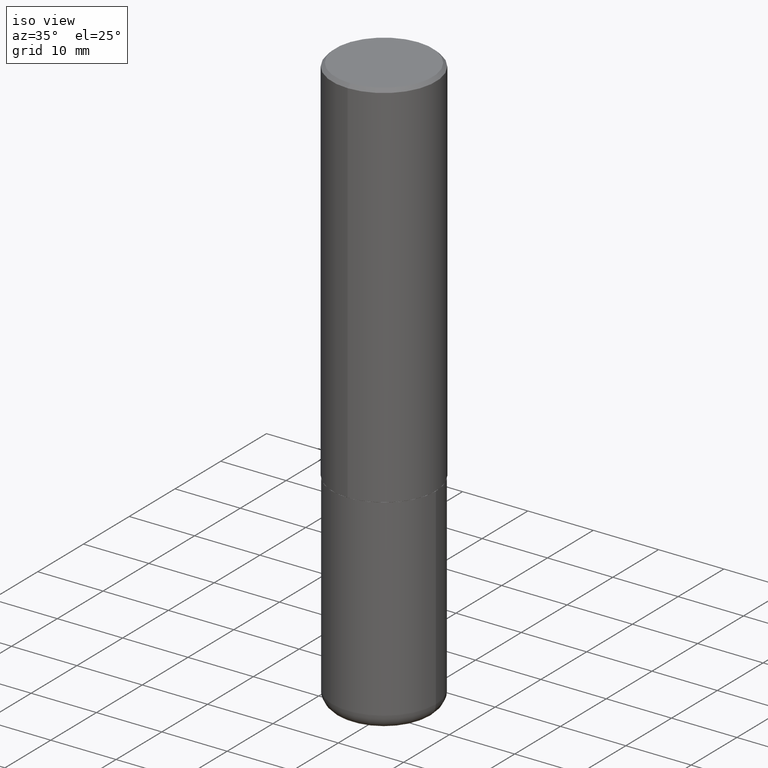
[diagram: clean part render]
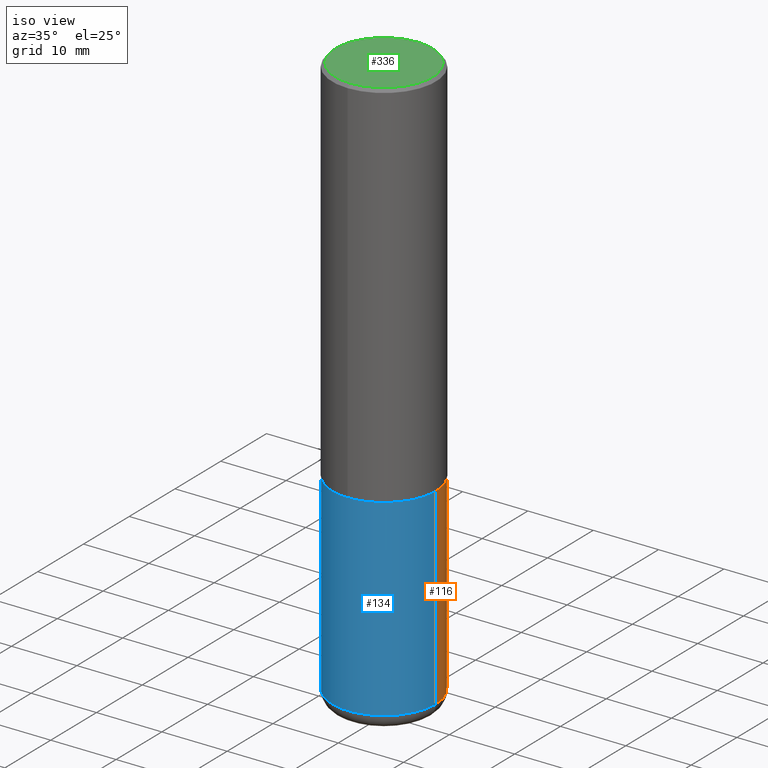
[diagram: same view with three faces highlighted in distinct colors, each labeled with its STEP entity id]
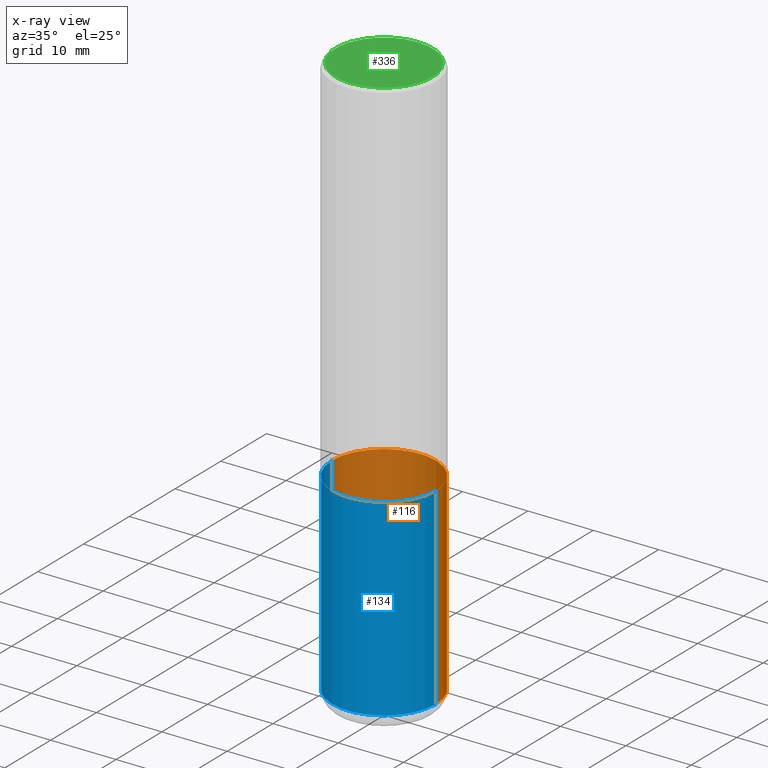
[diagram: x-ray of the same camera — body ghosted, the three highlighted faces saturated]
A machine part, iso view with three faces highlighted in distinct colors.
The next image is the same camera in x-ray (body ghosted, the three faces saturated) — at least one of them is partly hidden behind the body in this view.
Their STEP definitions:

[orange] entity #116 — the highlighted cylindrical surface (partial cylindrical patch) has radius 7.9375 mm, axis along (-0, 0, 1).
#10 = VECTOR ( 'NONE', #81, 39.37007874015748143 ) ;
#17 = CYLINDRICAL_SURFACE ( 'NONE', #105, 0.3125000000000000000 ) ;
#25 = CARTESIAN_POINT ( 'NONE',  ( -0.3125000000000000000, -7.660446139675788393E-15, -2.249999999999999556 ) ) ;
#34 = ORIENTED_EDGE ( 'NONE', *, *, #249, .T. ) ;
#41 = LINE ( 'NONE', #274, #10 ) ;
#42 = CARTESIAN_POINT ( 'NONE',  ( 0.000000000000000000, 0.000000000000000000, 0.000000000000000000 ) ) ;
#47 = DIRECTION ( 'NONE',  ( -2.445468806185136877E-29, 3.491481338843145188E-15, 1.000000000000000000 ) ) ;
#48 = AXIS2_PLACEMENT_3D ( 'NONE', #79, #343, #210 ) ;
#53 = DIRECTION ( 'NONE',  ( -2.445468806185136597E-29, 3.491481338843145583E-15, 1.000000000000000000 ) ) ;
#76 = DIRECTION ( 'NONE',  ( 1.000000000000000000, -6.982962677686266711E-15, 4.876176775795936353E-29 ) ) ;
#79 = CARTESIAN_POINT ( 'NONE',  ( 5.502304813916556222E-29, -7.855833012397075293E-15, -2.249999999999999556 ) ) ;
#81 = DIRECTION ( 'NONE',  ( -2.445468806185136877E-29, 3.491481338843145188E-15, 1.000000000000000000 ) ) ;
#86 = DIRECTION ( 'NONE',  ( 1.000000000000000000, -6.982962677686269077E-15, 0.000000000000000000 ) ) ;
#105 = AXIS2_PLACEMENT_3D ( 'NONE', #42, #372, #76 ) ;
#109 = EDGE_CURVE ( 'NONE', #328, #131, #41, .T. ) ;
#116 = ADVANCED_FACE ( 'NONE', ( #173 ), #17, .T. ) ;
#120 = VERTEX_POINT ( 'NONE', #411 ) ;
#131 = VERTEX_POINT ( 'NONE', #139 ) ;
#139 = CARTESIAN_POINT ( 'NONE',  ( 0.3125000000000000000, -1.003800884917403364E-14, -2.249999999999999556 ) ) ;
#173 = FACE_OUTER_BOUND ( 'NONE', #387, .T. ) ;
#187 = CIRCLE ( 'NONE', #268, 0.3125000000000000000 ) ;
#194 = ORIENTED_EDGE ( 'NONE', *, *, #109, .F. ) ;
#202 = CIRCLE ( 'NONE', #48, 0.3125000000000000000 ) ;
#210 = DIRECTION ( 'NONE',  ( 1.000000000000000000, -6.982962677686265133E-15, 0.000000000000000000 ) ) ;
#227 = ORIENTED_EDGE ( 'NONE', *, *, #300, .T. ) ;
#236 = EDGE_CURVE ( 'NONE', #131, #376, #202, .T. ) ;
#249 = EDGE_CURVE ( 'NONE', #120, #376, #276, .T. ) ;
#268 = AXIS2_PLACEMENT_3D ( 'NONE', #317, #53, #86 ) ;
#274 = CARTESIAN_POINT ( 'NONE',  ( 0.3125000000000000000, -2.182175836776958347E-15, 1.523805242436230075E-29 ) ) ;
#276 = LINE ( 'NONE', #410, #407 ) ;
#300 = EDGE_CURVE ( 'NONE', #328, #120, #187, .T. ) ;
#317 = CARTESIAN_POINT ( 'NONE',  ( 8.339048629091315302E-29, -1.190595136545512608E-14, -3.410000000000000142 ) ) ;
#328 = VERTEX_POINT ( 'NONE', #380 ) ;
#343 = DIRECTION ( 'NONE',  ( -2.445468806185136597E-29, 3.491481338843145583E-15, 1.000000000000000000 ) ) ;
#356 = ORIENTED_EDGE ( 'NONE', *, *, #236, .F. ) ;
#372 = DIRECTION ( 'NONE',  ( -2.445468806185136597E-29, 3.491481338843145583E-15, 1.000000000000000000 ) ) ;
#376 = VERTEX_POINT ( 'NONE', #25 ) ;
#380 = CARTESIAN_POINT ( 'NONE',  ( 0.3124999999999998890, -1.408812720223208442E-14, -3.410000000000000142 ) ) ;
#387 = EDGE_LOOP ( 'NONE', ( #227, #34, #356, #194 ) ) ;
#407 = VECTOR ( 'NONE', #47, 39.37007874015748143 ) ;
#410 = CARTESIAN_POINT ( 'NONE',  ( -0.3125000000000000000, 2.220446049250313081E-15, -1.537167215704658232E-29 ) ) ;
#411 = CARTESIAN_POINT ( 'NONE',  ( -0.3124999999999998890, -9.685505316204812997E-15, -3.410000000000000142 ) ) ;

[blue] entity #134 — the highlighted cylindrical surface (partial cylindrical patch) has radius 7.9375 mm, axis along (-0, 0, 1).
#8 = DIRECTION ( 'NONE',  ( 1.000000000000000000, -6.982962677686265133E-15, 0.000000000000000000 ) ) ;
#10 = VECTOR ( 'NONE', #81, 39.37007874015748143 ) ;
#25 = CARTESIAN_POINT ( 'NONE',  ( -0.3125000000000000000, -7.660446139675788393E-15, -2.249999999999999556 ) ) ;
#41 = LINE ( 'NONE', #274, #10 ) ;
#45 = AXIS2_PLACEMENT_3D ( 'NONE', #390, #235, #8 ) ;
#47 = DIRECTION ( 'NONE',  ( -2.445468806185136877E-29, 3.491481338843145188E-15, 1.000000000000000000 ) ) ;
#49 = ORIENTED_EDGE ( 'NONE', *, *, #360, .T. ) ;
#50 = CARTESIAN_POINT ( 'NONE',  ( 8.339048629091315302E-29, -1.190595136545512608E-14, -3.410000000000000142 ) ) ;
#57 = DIRECTION ( 'NONE',  ( -2.445468806185136597E-29, 3.491481338843145583E-15, 1.000000000000000000 ) ) ;
#80 = EDGE_CURVE ( 'NONE', #376, #131, #312, .T. ) ;
#81 = DIRECTION ( 'NONE',  ( -2.445468806185136877E-29, 3.491481338843145188E-15, 1.000000000000000000 ) ) ;
#107 = DIRECTION ( 'NONE',  ( -2.445468806185136597E-29, 3.491481338843145583E-15, 1.000000000000000000 ) ) ;
#109 = EDGE_CURVE ( 'NONE', #328, #131, #41, .T. ) ;
#113 = CYLINDRICAL_SURFACE ( 'NONE', #262, 0.3125000000000000000 ) ;
#118 = DIRECTION ( 'NONE',  ( 1.000000000000000000, -6.982962677686269077E-15, 0.000000000000000000 ) ) ;
#120 = VERTEX_POINT ( 'NONE', #411 ) ;
#129 = CIRCLE ( 'NONE', #286, 0.3125000000000000000 ) ;
#131 = VERTEX_POINT ( 'NONE', #139 ) ;
#134 = ADVANCED_FACE ( 'NONE', ( #146 ), #113, .T. ) ;
#139 = CARTESIAN_POINT ( 'NONE',  ( 0.3125000000000000000, -1.003800884917403364E-14, -2.249999999999999556 ) ) ;
#146 = FACE_OUTER_BOUND ( 'NONE', #374, .T. ) ;
#177 = CARTESIAN_POINT ( 'NONE',  ( 0.000000000000000000, 0.000000000000000000, 0.000000000000000000 ) ) ;
#235 = DIRECTION ( 'NONE',  ( -2.445468806185136597E-29, 3.491481338843145583E-15, 1.000000000000000000 ) ) ;
#242 = ORIENTED_EDGE ( 'NONE', *, *, #80, .F. ) ;
#244 = DIRECTION ( 'NONE',  ( 1.000000000000000000, -6.982962677686266711E-15, 4.876176775795936353E-29 ) ) ;
#249 = EDGE_CURVE ( 'NONE', #120, #376, #276, .T. ) ;
#262 = AXIS2_PLACEMENT_3D ( 'NONE', #177, #107, #244 ) ;
#274 = CARTESIAN_POINT ( 'NONE',  ( 0.3125000000000000000, -2.182175836776958347E-15, 1.523805242436230075E-29 ) ) ;
#276 = LINE ( 'NONE', #410, #407 ) ;
#277 = ORIENTED_EDGE ( 'NONE', *, *, #249, .F. ) ;
#286 = AXIS2_PLACEMENT_3D ( 'NONE', #50, #57, #118 ) ;
#312 = CIRCLE ( 'NONE', #45, 0.3125000000000000000 ) ;
#328 = VERTEX_POINT ( 'NONE', #380 ) ;
#360 = EDGE_CURVE ( 'NONE', #120, #328, #129, .T. ) ;
#374 = EDGE_LOOP ( 'NONE', ( #277, #49, #417, #242 ) ) ;
#376 = VERTEX_POINT ( 'NONE', #25 ) ;
#380 = CARTESIAN_POINT ( 'NONE',  ( 0.3124999999999998890, -1.408812720223208442E-14, -3.410000000000000142 ) ) ;
#390 = CARTESIAN_POINT ( 'NONE',  ( 5.502304813916556222E-29, -7.855833012397075293E-15, -2.249999999999999556 ) ) ;
#407 = VECTOR ( 'NONE', #47, 39.37007874015748143 ) ;
#410 = CARTESIAN_POINT ( 'NONE',  ( -0.3125000000000000000, 2.220446049250313081E-15, -1.537167215704658232E-29 ) ) ;
#411 = CARTESIAN_POINT ( 'NONE',  ( -0.3124999999999998890, -9.685505316204812997E-15, -3.410000000000000142 ) ) ;
#417 = ORIENTED_EDGE ( 'NONE', *, *, #109, .T. ) ;

[green] entity #336 — the highlighted planar face has unit normal (0, -0, -1).
#4 = VERTEX_POINT ( 'NONE', #395 ) ;
#20 = DIRECTION ( 'NONE',  ( -6.982962677686265133E-15, -1.000000000000000000, 3.490443558904832811E-15 ) ) ;
#51 = CARTESIAN_POINT ( 'NONE',  ( 2.042516583223231356E-15, 0.2924999999999998157, -9.271992415134321098E-16 ) ) ;
#74 = EDGE_LOOP ( 'NONE', ( #102, #184 ) ) ;
#88 = DIRECTION ( 'NONE',  ( 6.982962677686265922E-15, 1.000000000000000000, -3.490443558904832811E-15 ) ) ;
#96 = EDGE_CURVE ( 'NONE', #4, #275, #334, .T. ) ;
#102 = ORIENTED_EDGE ( 'NONE', *, *, #96, .T. ) ;
#122 = CARTESIAN_POINT ( 'NONE',  ( -2.075300644325887099E-15, -0.2924999999999998157, 1.208465739912124514E-15 ) ) ;
#152 = CARTESIAN_POINT ( 'NONE',  ( -4.586881837749487751E-45, 6.544965584476215341E-31, 1.875109989324615864E-16 ) ) ;
#174 = CIRCLE ( 'NONE', #412, 0.2924999999999998157 ) ;
#184 = ORIENTED_EDGE ( 'NONE', *, *, #293, .T. ) ;
#185 = DIRECTION ( 'NONE',  ( -2.446193484042825510E-29, 3.490443558904832811E-15, 1.000000000000000000 ) ) ;
#254 = AXIS2_PLACEMENT_3D ( 'NONE', #267, #339, #20 ) ;
#267 = CARTESIAN_POINT ( 'NONE',  ( -4.586881837749487751E-45, 6.544965584476215341E-31, 1.875109989324615864E-16 ) ) ;
#275 = VERTEX_POINT ( 'NONE', #122 ) ;
#281 = FACE_OUTER_BOUND ( 'NONE', #74, .T. ) ;
#293 = EDGE_CURVE ( 'NONE', #275, #4, #174, .T. ) ;
#323 = AXIS2_PLACEMENT_3D ( 'NONE', #51, #414, #88 ) ;
#334 = CIRCLE ( 'NONE', #254, 0.2924999999999998157 ) ;
#336 = ADVANCED_FACE ( 'NONE', ( #281 ), #385, .F. ) ;
#339 = DIRECTION ( 'NONE',  ( -2.446193484042825510E-29, 3.490443558904832811E-15, 1.000000000000000000 ) ) ;
#385 = PLANE ( 'NONE',  #323 ) ;
#395 = CARTESIAN_POINT ( 'NONE',  ( 2.112346210000095049E-15, 0.2924999999999998157, -8.334437420472012427E-16 ) ) ;
#412 = AXIS2_PLACEMENT_3D ( 'NONE', #152, #185, #418 ) ;
#414 = DIRECTION ( 'NONE',  ( 2.446193484042825230E-29, -3.490443558904832811E-15, -1.000000000000000000 ) ) ;
#418 = DIRECTION ( 'NONE',  ( -6.982962677686265133E-15, -1.000000000000000000, 3.490443558904832811E-15 ) ) ;